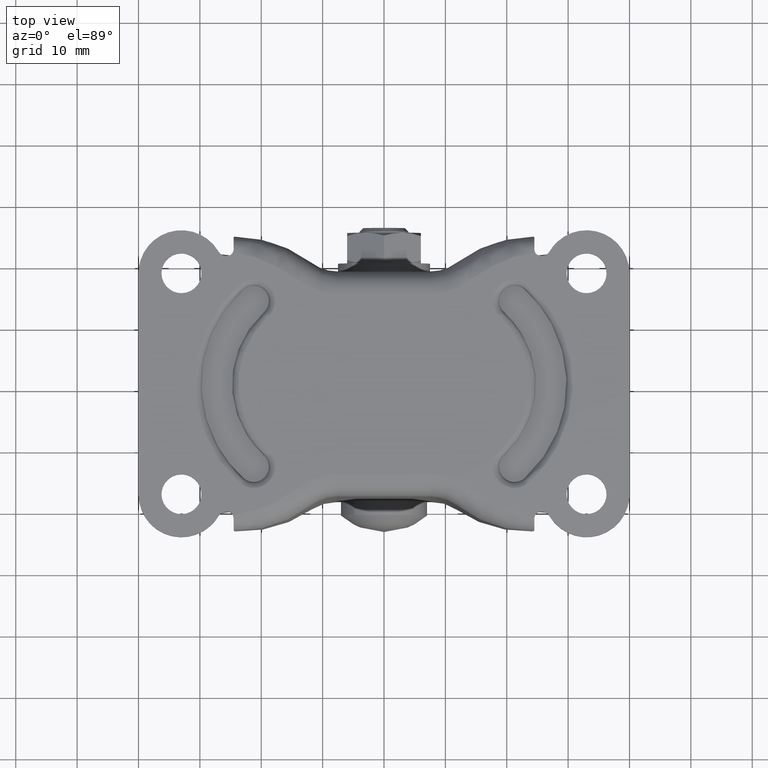
[diagram: clean part render]
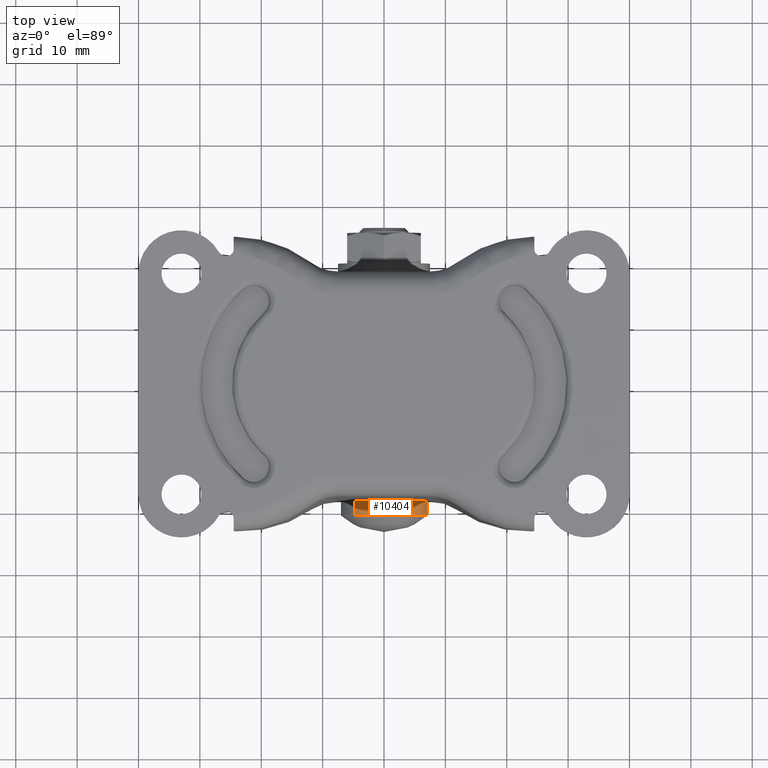
[diagram: same view with one face highlighted and labeled with its STEP entity id]
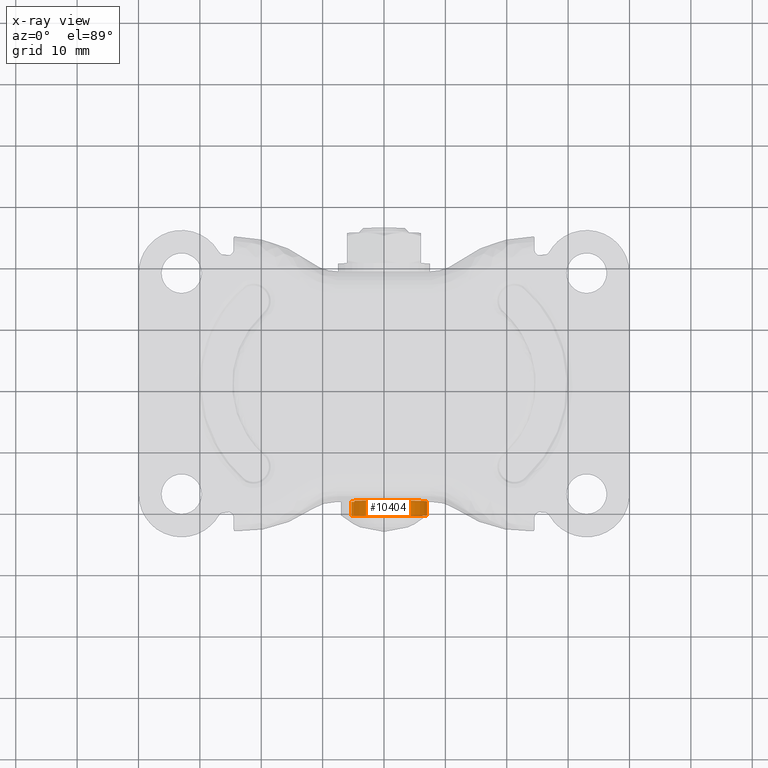
[diagram: x-ray of the same camera — body ghosted, the highlighted face saturated]
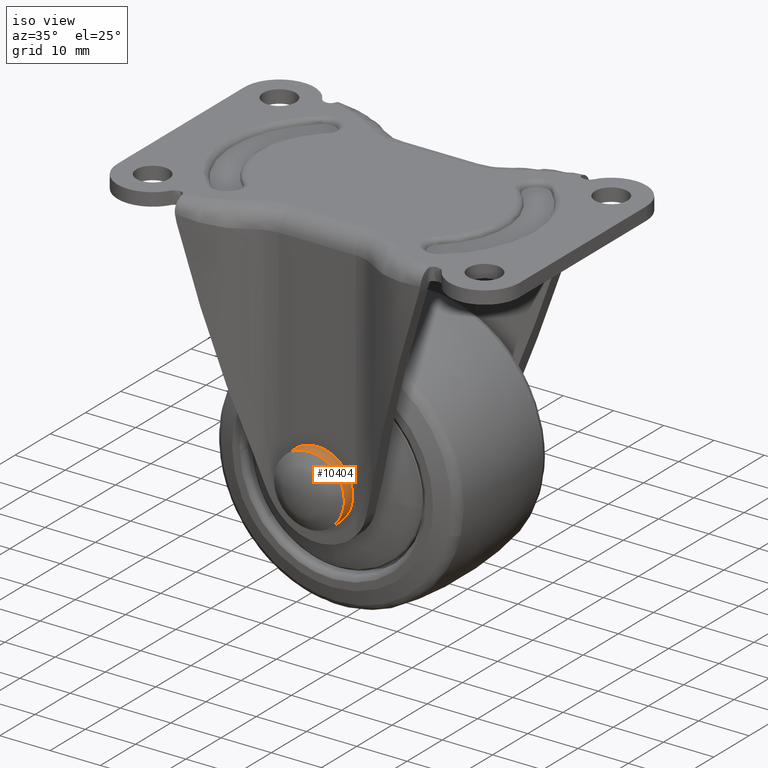
[diagram: same view with one face highlighted and labeled with its STEP entity id]
A machine part, top view. The second image highlights one B-rep face of the part: STEP entity #10404.
The next image is the same camera in x-ray: the body ghosted, the highlighted face saturated — about 5% of this face is hidden behind the body in this view.
A second angle (iso view) of the same face is appended — the face is thin or edge-on in the first view.
In plain terms, the highlighted face is a freeform B-spline surface patch.
Its self-contained STEP definition (entity closure, byte-faithful):
#10253=CARTESIAN_POINT('',(-5.344889500583101,-18.291844050000019,-51.520194268674068));
#10254=CARTESIAN_POINT('',(-5.215523482620454,-18.291844050000009,-51.673162709860911));
#10255=CARTESIAN_POINT('',(-5.077620597085867,-18.291844050000009,-51.818482029856142));
#10256=CARTESIAN_POINT('',(-0.259138567229728,-18.291844050000012,-56.896102626942017));
#10257=CARTESIAN_POINT('',(4.818482029856138,-18.291844050000009,-52.077620597085868));
#10258=CARTESIAN_POINT('',(9.896102626942005,-18.291844050000012,-47.259138567229726));
#10259=CARTESIAN_POINT('',(5.077620597085867,-18.291844050000009,-42.181517970143858));
#10260=CARTESIAN_POINT('',(0.259138567229728,-18.291844050000012,-37.103897373057983));
#10261=CARTESIAN_POINT('',(-4.818482029856138,-18.291844050000009,-41.922379402914132));
#10262=CARTESIAN_POINT('',(-5.344889500583101,-20.735847848749902,-51.520194268674068));
#10263=CARTESIAN_POINT('',(-5.215523482620454,-20.735847848749895,-51.673162709860911));
#10264=CARTESIAN_POINT('',(-5.077620597085867,-20.735847848749899,-51.818482029856142));
#10265=CARTESIAN_POINT('',(-0.259138567229728,-20.735847848749902,-56.896102626942017));
#10266=CARTESIAN_POINT('',(4.818482029856138,-20.735847848749899,-52.077620597085868));
#10267=CARTESIAN_POINT('',(9.896102626942005,-20.735847848749902,-47.259138567229726));
#10268=CARTESIAN_POINT('',(5.077620597085867,-20.735847848749899,-42.181517970143858));
#10269=CARTESIAN_POINT('',(0.259138567229728,-20.735847848749902,-37.103897373057983));
#10270=CARTESIAN_POINT('',(-4.818482029856138,-20.735847848749899,-41.922379402914132));
#10278=(BOUNDED_SURFACE()B_SPLINE_SURFACE(2,1,((#10253,#10262),(#10254,#10263),(#10255,#10264),(#10256,#10265),(#10257,#10266),(#10258,#10267),(#10259,#10268),(#10260,#10269),(#10261,#10270)),.UNSPECIFIED.,.F.,.F.,.U.)B_SPLINE_SURFACE_WITH_KNOTS((3,2,2,2,3),(2,2),(0.0,0.463919189857854,12.061898936304180,23.659878682750499,35.257858429196823),(0.0,2.444003798749896),.UNSPECIFIED.)GEOMETRIC_REPRESENTATION_ITEM()RATIONAL_B_SPLINE_SURFACE(((0.977505800795127,0.977505800795127),(0.988284271247462,0.988284271247462),(1.0,1.0),(0.707106781186548,0.707106781186548),(1.0,1.0),(0.707106781186548,0.707106781186548),(1.0,1.0),(0.707106781186548,0.707106781186548),(1.0,1.0)))REPRESENTATION_ITEM('')SURFACE());
#10279=CARTESIAN_POINT('',(-5.344889826523950,-20.676238000019850,-51.520194506420552));
#10280=VERTEX_POINT('',#10279);
#10281=CARTESIAN_POINT('',(0.0,-20.676237999999898,-53.999999999999801));
#10282=VERTEX_POINT('',#10281);
#10283=CARTESIAN_POINT('',(-5.344889826523950,-20.676238000019850,-51.520194506420552));
#10284=CARTESIAN_POINT('',(-4.956370677880870,-20.676238000018412,-51.979838069429121));
#10285=CARTESIAN_POINT('',(-4.272128050592987,-20.676238000015829,-52.604076545792623));
#10286=CARTESIAN_POINT('',(-3.048922233777674,-20.676238000011239,-53.342266555198648));
#10287=CARTESIAN_POINT('',(-1.710378886147217,-20.676238000006450,-53.856130511914976));
#10288=CARTESIAN_POINT('',(-0.601847807157757,-20.676238000002041,-54.000182134350787));
#10289=CARTESIAN_POINT('',(0.0,-20.676237999999898,-53.999999999999801));
#10290=B_SPLINE_CURVE_WITH_KNOTS('',3,(#10283,#10284,#10285,#10286,#10287,#10288,#10289),.UNSPECIFIED.,.F.,.U.,(4,1,1,1,4),(0.000000054336414,1.805497937149037,2.755766491438868,4.276160374188608,6.081658256972279),.UNSPECIFIED.);
#10291=EDGE_CURVE('',#10280,#10282,#10290,.T.);
#10292=ORIENTED_EDGE('',*,*,#10291,.F.);
#10293=CARTESIAN_POINT('',(-5.344889826291026,-18.350000000000001,-51.520194506695972));
#10294=VERTEX_POINT('',#10293);
#10295=CARTESIAN_POINT('',(-5.344889826291026,-18.350000000000001,-51.520194506695972));
#10296=CARTESIAN_POINT('',(-5.344889826523950,-20.676238000019850,-51.520194506420552));
#10297=QUASI_UNIFORM_CURVE('',1,(#10295,#10296),.UNSPECIFIED.,.F.,.U.);
#10298=EDGE_CURVE('',#10294,#10280,#10297,.T.);
#10299=ORIENTED_EDGE('',*,*,#10298,.F.);
#10300=CARTESIAN_POINT('',(0.0,-18.350000000000001,-53.999999999999801));
#10301=VERTEX_POINT('',#10300);
#10302=CARTESIAN_POINT('',(-5.344889826291026,-18.350000000000001,-51.520194506695972));
#10303=CARTESIAN_POINT('',(-4.813502772055498,-18.349999999999991,-52.149469353640242));
#10304=CARTESIAN_POINT('',(-3.698535010178400,-18.350000000000019,-53.072782824561372));
#10305=CARTESIAN_POINT('',(-1.805405724313497,-18.350000000000019,-53.843814280891962));
#10306=CARTESIAN_POINT('',(-0.601841905489563,-18.350000000000009,-54.000173941488043));
#10307=CARTESIAN_POINT('',(0.0,-18.350000000000001,-53.999999999999801));
#10308=B_SPLINE_CURVE_WITH_KNOTS('',3,(#10302,#10303,#10304,#10305,#10306,#10307),.UNSPECIFIED.,.F.,.U.,(4,1,1,4),(0.000000054335381,2.470692204174110,4.276160373934491,6.081658256611564),.UNSPECIFIED.);
#10309=EDGE_CURVE('',#10294,#10301,#10308,.T.);
#10310=ORIENTED_EDGE('',*,*,#10309,.T.);
#10311=CARTESIAN_POINT('',(6.999999999999610,-18.350000000000009,-46.999998367756717));
#10312=VERTEX_POINT('',#10311);
#10313=CARTESIAN_POINT('',(0.0,-18.350000000000001,-53.999999999999801));
#10314=CARTESIAN_POINT('',(0.715903760074476,-18.350000000000009,-54.000366403647021));
#10315=CARTESIAN_POINT('',(1.889670903155113,-18.350000000000019,-53.818256016663902));
#10316=CARTESIAN_POINT('',(3.344157225414378,-18.350000000000019,-53.194687462586877));
#10317=CARTESIAN_POINT('',(4.299973431738291,-18.349999999999991,-52.555968675056633));
#10318=CARTESIAN_POINT('',(5.171542308797518,-18.350000000000058,-51.766110724990568));
#10319=CARTESIAN_POINT('',(5.885588886630321,-18.349999999999980,-50.862609790277141));
#10320=CARTESIAN_POINT('',(6.501333895165257,-18.350000000000140,-49.693424157817532));
#10321=CARTESIAN_POINT('',(6.901052491889269,-18.349999999999849,-48.431686782797513));
#10322=CARTESIAN_POINT('',(7.000068522197899,-18.350000000000009,-47.486779241232249));
#10323=CARTESIAN_POINT('',(6.999999999999610,-18.350000000000009,-46.999998367756717));
#10324=B_SPLINE_CURVE_WITH_KNOTS('',3,(#10313,#10314,#10315,#10316,#10317,#10318,#10319,#10320,#10321,#10322,#10323),.UNSPECIFIED.,.F.,.U.,(4,1,1,1,1,1,1,1,4),(0.000000164949702,2.147574650478433,3.522054004139080,4.724694790966056,5.583675802744732,7.044075133261498,8.160828197289318,9.535306927221431,10.995644200103881),.UNSPECIFIED.);
#10325=EDGE_CURVE('',#10301,#10312,#10324,.T.);
#10326=ORIENTED_EDGE('',*,*,#10325,.T.);
#10327=CARTESIAN_POINT('',(0.0,-18.350000000000001,-40.000000000000199));
#10328=VERTEX_POINT('',#10327);
#10329=CARTESIAN_POINT('',(6.999999999999610,-18.350000000000009,-46.999998367756717));
#10330=CARTESIAN_POINT('',(7.000068786517812,-18.350000000000001,-46.513214786797391));
#10331=CARTESIAN_POINT('',(6.901041114456738,-18.350000000000041,-45.568309420986438));
#10332=CARTESIAN_POINT('',(6.527386545775296,-18.349999999999959,-44.388872311350610));
#10333=CARTESIAN_POINT('',(5.908360701263812,-18.350000000000168,-43.158785975512167));
#10334=CARTESIAN_POINT('',(5.055084922178791,-18.349999999999731,-42.065361255283918));
#10335=CARTESIAN_POINT('',(3.954192074067665,-18.350000000000431,-41.184548643147657));
#10336=CARTESIAN_POINT('',(2.926824322065996,-18.349999999999142,-40.610840357640683));
#10337=CARTESIAN_POINT('',(1.660686424864936,-18.350000000000509,-40.140144274984323));
#10338=CARTESIAN_POINT('',(0.629974419950896,-18.349999999999930,-39.999773750037612));
#10339=CARTESIAN_POINT('',(0.0,-18.350000000000001,-40.000000000000199));
#10340=B_SPLINE_CURVE_WITH_KNOTS('',3,(#10329,#10330,#10331,#10332,#10333,#10334,#10335,#10336,#10337,#10338,#10339),.UNSPECIFIED.,.F.,.U.,(4,1,1,1,1,1,1,1,4),(0.000000165493850,1.460344502207633,2.834816160645653,3.693856351846858,5.583674869097566,6.958158286858569,7.903110598115926,9.105785806719720,10.995642360173751),.UNSPECIFIED.);
#10341=EDGE_CURVE('',#10312,#10328,#10340,.T.);
#10342=ORIENTED_EDGE('',*,*,#10341,.T.);
#10343=CARTESIAN_POINT('',(-4.818481812275593,-18.350000000000001,-41.922379758219023));
#10344=VERTEX_POINT('',#10343);
#10345=CARTESIAN_POINT('',(0.0,-18.350000000000001,-40.000000000000199));
#10346=CARTESIAN_POINT('',(-0.525911569705452,-18.349999999999991,-39.999943346815328));
#10347=CARTESIAN_POINT('',(-1.688495360038653,-18.350000000000009,-40.131460578995870));
#10348=CARTESIAN_POINT('',(-3.360720565032627,-18.350000000000009,-40.764410663072027));
#10349=CARTESIAN_POINT('',(-4.376870397196814,-18.350000000000009,-41.503068318157872));
#10350=CARTESIAN_POINT('',(-4.818481812275593,-18.350000000000001,-41.922379758219023));
#10351=B_SPLINE_CURVE_WITH_KNOTS('',3,(#10345,#10346,#10347,#10348,#10349,#10350),.UNSPECIFIED.,.F.,.U.,(4,1,1,4),(0.000000041524153,1.577761876102711,3.487670809774082,5.314558664824068),.UNSPECIFIED.);
#10352=EDGE_CURVE('',#10328,#10344,#10351,.T.);
#10353=ORIENTED_EDGE('',*,*,#10352,.T.);
#10354=CARTESIAN_POINT('',(-4.818481813036228,-20.676237999993582,-41.922379758940842));
#10355=VERTEX_POINT('',#10354);
#10356=CARTESIAN_POINT('',(-4.818481812275593,-18.350000000000001,-41.922379758219023));
#10357=CARTESIAN_POINT('',(-4.818481813036228,-20.676237999993582,-41.922379758940842));
#10358=QUASI_UNIFORM_CURVE('',1,(#10356,#10357),.UNSPECIFIED.,.F.,.U.);
#10359=EDGE_CURVE('',#10344,#10355,#10358,.T.);
#10360=ORIENTED_EDGE('',*,*,#10359,.T.);
#10361=CARTESIAN_POINT('',(0.0,-20.676237999999898,-40.000000000000199));
#10362=VERTEX_POINT('',#10361);
#10363=CARTESIAN_POINT('',(0.0,-20.676237999999898,-40.000000000000199));
#10364=CARTESIAN_POINT('',(-0.525922562814106,-20.676237999999220,-39.999905185139532));
#10365=CARTESIAN_POINT('',(-1.466995263441774,-20.676237999997991,-40.106559430608257));
#10366=CARTESIAN_POINT('',(-2.656224495079256,-20.676237999996431,-40.493273779958642));
#10367=CARTESIAN_POINT('',(-3.769929562559416,-20.676237999994932,-41.057010326355957));
#10368=CARTESIAN_POINT('',(-4.437063342752549,-20.676237999994100,-41.560271863003699));
#10369=CARTESIAN_POINT('',(-4.818481813036228,-20.676237999993582,-41.922379758940842));
#10370=B_SPLINE_CURVE_WITH_KNOTS('',3,(#10363,#10364,#10365,#10366,#10367,#10368,#10369),.UNSPECIFIED.,.F.,.U.,(4,1,1,1,4),(0.000000041524424,1.577761876414391,2.823339811274024,3.736796831002542,5.314558665872708),.UNSPECIFIED.);
#10371=EDGE_CURVE('',#10362,#10355,#10370,.T.);
#10372=ORIENTED_EDGE('',*,*,#10371,.F.);
#10373=CARTESIAN_POINT('',(6.999999999999610,-20.676237999999898,-46.999998367756717));
#10374=VERTEX_POINT('',#10373);
#10375=CARTESIAN_POINT('',(6.999999999999610,-20.676237999999898,-46.999998367756717));
#10376=CARTESIAN_POINT('',(7.000424291065470,-20.676237999999930,-46.255452791206082));
#10377=CARTESIAN_POINT('',(6.801623670532063,-20.676237999999820,-45.024459392938837));
#10378=CARTESIAN_POINT('',(6.032761085982074,-20.676238000000058,-43.318283066939777));
#10379=CARTESIAN_POINT('',(5.055105611506185,-20.676237999999639,-42.065342015301333));
#10380=CARTESIAN_POINT('',(3.954188308033292,-20.676238000000350,-41.184552143765600));
#10381=CARTESIAN_POINT('',(2.926824319354197,-20.676237999998939,-40.610840362095132));
#10382=CARTESIAN_POINT('',(1.660686425658937,-20.676238000000470,-40.140144273730293));
#10383=CARTESIAN_POINT('',(0.629974419719901,-20.676237999999831,-39.999773750396841));
#10384=CARTESIAN_POINT('',(0.0,-20.676237999999898,-40.000000000000199));
#10385=B_SPLINE_CURVE_WITH_KNOTS('',3,(#10375,#10376,#10377,#10378,#10379,#10380,#10381,#10382,#10383,#10384),.UNSPECIFIED.,.F.,.U.,(4,1,1,1,1,1,1,4),(0.000000165493850,2.233488912889319,3.693856351846858,5.583674869097566,6.958158286858569,7.903110598115926,9.105785806719720,10.995642360173751),.UNSPECIFIED.);
#10386=EDGE_CURVE('',#10374,#10362,#10385,.T.);
#10387=ORIENTED_EDGE('',*,*,#10386,.F.);
#10388=CARTESIAN_POINT('',(0.0,-20.676237999999898,-53.999999999999801));
#10389=CARTESIAN_POINT('',(0.400869754490102,-20.676237999999980,-54.000019402928046));
#10390=CARTESIAN_POINT('',(1.345811165547285,-20.676237999999810,-53.918663272482377));
#10391=CARTESIAN_POINT('',(2.866019026151657,-20.676237999999959,-53.467903096655597));
#10392=CARTESIAN_POINT('',(4.253955948587698,-20.676237999999980,-52.635926172930240));
#10393=CARTESIAN_POINT('',(5.268342268148991,-20.676237999999810,-51.657946887801820));
#10394=CARTESIAN_POINT('',(5.952492653089257,-20.676238000000009,-50.735486665428184));
#10395=CARTESIAN_POINT('',(6.501337509595619,-20.676238000000001,-49.693426788660602));
#10396=CARTESIAN_POINT('',(6.901053373351567,-20.676237999999739,-48.431687659334507));
#10397=CARTESIAN_POINT('',(7.000068356056401,-20.676237999999909,-47.486779076897811));
#10398=CARTESIAN_POINT('',(6.999999999999610,-20.676237999999898,-46.999998367756717));
#10399=B_SPLINE_CURVE_WITH_KNOTS('',3,(#10388,#10389,#10390,#10391,#10392,#10393,#10394,#10395,#10396,#10397,#10398),.UNSPECIFIED.,.F.,.U.,(4,1,1,1,1,1,1,1,4),(0.000000164949702,1.202628837406570,2.834816634504483,4.724694790966056,6.013240298068046,7.044075133261498,8.160828197289318,9.535306927221431,10.995644200103881),.UNSPECIFIED.);
#10400=EDGE_CURVE('',#10282,#10374,#10399,.T.);
#10401=ORIENTED_EDGE('',*,*,#10400,.F.);
#10402=EDGE_LOOP('',(#10292,#10299,#10310,#10326,#10342,#10353,#10360,#10372,#10387,#10401));
#10403=FACE_OUTER_BOUND('',#10402,.T.);
#10404=ADVANCED_FACE('',(#10403),#10278,.T.);